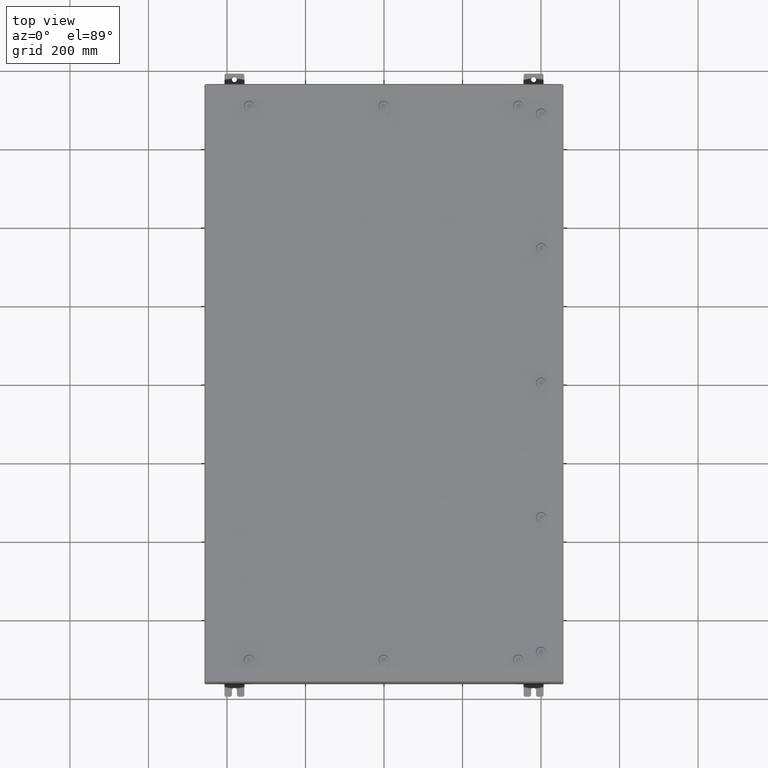
[diagram: clean part render]
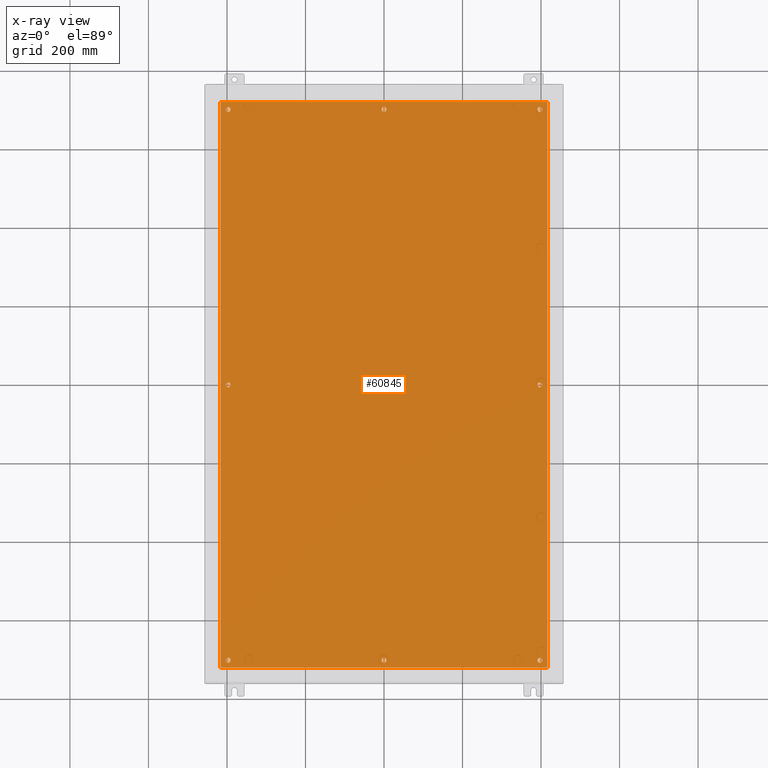
[diagram: x-ray — body ghosted, one internal face saturated and labeled with its STEP entity id]
A machine part, top view, then the same camera in x-ray: the body is ghosted and one INTERNAL B-rep face — a face not visible from any outside direction — is saturated and labeled: STEP entity #60845.
In plain terms, the highlighted planar face has unit normal (0, 0, -1).
Its self-contained STEP definition (entity closure, byte-faithful):
#55 = ORIENTED_EDGE ( 'NONE', *, *, #8311, .T. ) ;
#621 = AXIS2_PLACEMENT_3D ( 'NONE', #48379, #27623, #56790 ) ;
#662 = EDGE_CURVE ( 'NONE', #45774, #49814, #28834, .T. ) ;
#1459 = EDGE_CURVE ( 'NONE', #49814, #45774, #5251, .T. ) ;
#1647 = CARTESIAN_POINT ( 'NONE',  ( -15.37500000000000500, -8.298848852119578500E-016, -0.1039999999999999800 ) ) ;
#1670 = CARTESIAN_POINT ( 'NONE',  ( 16.38299999999999900, 28.38299999999998800, -0.1040000000000009100 ) ) ;
#2325 = EDGE_CURVE ( 'NONE', #19548, #65533, #22899, .T. ) ;
#2331 = DIRECTION ( 'NONE',  ( -0.0000000000000000000, -0.0000000000000000000, 1.000000000000000000 ) ) ;
#3059 = DIRECTION ( 'NONE',  ( 1.000000000000000000, -0.0000000000000000000, -0.0000000000000000000 ) ) ;
#3248 = EDGE_LOOP ( 'NONE', ( #14933, #36648 ) ) ;
#3445 = EDGE_LOOP ( 'NONE', ( #41530, #25953 ) ) ;
#4268 = CIRCLE ( 'NONE', #22960, 0.2500000000000008900 ) ;
#4839 = CARTESIAN_POINT ( 'NONE',  ( 0.0000000000000000000, 27.62500000000000000, -0.1039999999999999800 ) ) ;
#5251 = CIRCLE ( 'NONE', #19748, 0.2500000000000011700 ) ;
#5957 = AXIS2_PLACEMENT_3D ( 'NONE', #39358, #7279, #44708 ) ;
#6398 = CARTESIAN_POINT ( 'NONE',  ( 16.50000000000000000, 28.38299999999999600, -0.1040000000000009400 ) ) ;
#7279 = DIRECTION ( 'NONE',  ( -0.0000000000000000000, -0.0000000000000000000, 1.000000000000000000 ) ) ;
#7338 = EDGE_CURVE ( 'NONE', #54043, #12693, #20841, .T. ) ;
#7762 = CIRCLE ( 'NONE', #56316, 0.2500000000000008900 ) ;
#7922 = VERTEX_POINT ( 'NONE', #68845 ) ;
#8017 = DIRECTION ( 'NONE',  ( -1.000000000000000000, 0.0000000000000000000, 0.0000000000000000000 ) ) ;
#8251 = CARTESIAN_POINT ( 'NONE',  ( -15.62500000000001100, 27.62500000000000000, -0.1039999999999999800 ) ) ;
#8311 = EDGE_CURVE ( 'NONE', #7922, #14552, #19157, .T. ) ;
#8398 = EDGE_CURVE ( 'NONE', #51762, #43004, #44172, .T. ) ;
#8799 = EDGE_LOOP ( 'NONE', ( #31256, #59850 ) ) ;
#9094 = EDGE_LOOP ( 'NONE', ( #49735, #61464, #32280, #57158 ) ) ;
#9729 = DIRECTION ( 'NONE',  ( -0.0000000000000000000, -0.0000000000000000000, 1.000000000000000000 ) ) ;
#10201 = FACE_BOUND ( 'NONE', #57133, .T. ) ;
#10237 = DIRECTION ( 'NONE',  ( -1.000000000000000000, 0.0000000000000000000, 0.0000000000000000000 ) ) ;
#10592 = CARTESIAN_POINT ( 'NONE',  ( -15.87500000000000700, -7.992687152332741600E-016, -0.1039999999999999800 ) ) ;
#10822 = CARTESIAN_POINT ( 'NONE',  ( 15.62500000000000900, -27.62500000000000000, -0.1039999999999999800 ) ) ;
#11716 = DIRECTION ( 'NONE',  ( -0.0000000000000000000, -0.0000000000000000000, 1.000000000000000000 ) ) ;
#12627 = CARTESIAN_POINT ( 'NONE',  ( -15.37500000000000900, 27.62500000000000000, -0.1039999999999999800 ) ) ;
#12693 = VERTEX_POINT ( 'NONE', #1670 ) ;
#12861 = CARTESIAN_POINT ( 'NONE',  ( -15.37500000000000900, -27.62500000000000000, -0.1039999999999999800 ) ) ;
#13051 = EDGE_CURVE ( 'NONE', #16621, #41431, #27387, .T. ) ;
#13097 = CARTESIAN_POINT ( 'NONE',  ( -15.62500000000000500, -8.298848852119578500E-016, -0.1039999999999999800 ) ) ;
#13124 = CARTESIAN_POINT ( 'NONE',  ( -15.87500000000001100, 27.62500000000000000, -0.1039999999999999800 ) ) ;
#13408 = VERTEX_POINT ( 'NONE', #26691 ) ;
#13662 = DIRECTION ( 'NONE',  ( -1.000000000000000000, 0.0000000000000000000, 0.0000000000000000000 ) ) ;
#13898 = AXIS2_PLACEMENT_3D ( 'NONE', #10822, #48251, #16258 ) ;
#14116 = VERTEX_POINT ( 'NONE', #13124 ) ;
#14552 = VERTEX_POINT ( 'NONE', #63757 ) ;
#14933 = ORIENTED_EDGE ( 'NONE', *, *, #2325, .T. ) ;
#15164 = CIRCLE ( 'NONE', #69335, 0.2500000000000008900 ) ;
#15426 = CARTESIAN_POINT ( 'NONE',  ( -0.2500000000000011700, -27.62500000000000000, -0.1039999999999999800 ) ) ;
#15698 = DIRECTION ( 'NONE',  ( -0.0000000000000000000, -0.0000000000000000000, 1.000000000000000000 ) ) ;
#16145 = CARTESIAN_POINT ( 'NONE',  ( 15.62500000000000900, 27.62500000000000000, -0.1039999999999999800 ) ) ;
#16258 = DIRECTION ( 'NONE',  ( -1.000000000000000000, 0.0000000000000000000, 0.0000000000000000000 ) ) ;
#16621 = VERTEX_POINT ( 'NONE', #65924 ) ;
#17282 = CIRCLE ( 'NONE', #54260, 0.2499999999999987000 ) ;
#17938 = EDGE_CURVE ( 'NONE', #41431, #16621, #7762, .T. ) ;
#18027 = EDGE_CURVE ( 'NONE', #21912, #18144, #48736, .T. ) ;
#18144 = VERTEX_POINT ( 'NONE', #22248 ) ;
#19096 = CARTESIAN_POINT ( 'NONE',  ( -15.62500000000000900, -27.62500000000000000, -0.1039999999999999800 ) ) ;
#19157 = CIRCLE ( 'NONE', #621, 0.2499999999999998600 ) ;
#19181 = CARTESIAN_POINT ( 'NONE',  ( -16.38299999999999900, 28.38299999999998800, -0.1040000000000009100 ) ) ;
#19548 = VERTEX_POINT ( 'NONE', #12861 ) ;
#19748 = AXIS2_PLACEMENT_3D ( 'NONE', #53363, #40325, #8017 ) ;
#20050 = DIRECTION ( 'NONE',  ( 0.0000000000000000000, 1.000000000000000000, 0.0000000000000000000 ) ) ;
#20643 = AXIS2_PLACEMENT_3D ( 'NONE', #19096, #2331, #49202 ) ;
#20841 = LINE ( 'NONE', #29858, #49262 ) ;
#21219 = EDGE_CURVE ( 'NONE', #43004, #51762, #15164, .T. ) ;
#21546 = DIRECTION ( 'NONE',  ( -1.000000000000000000, 0.0000000000000000000, 0.0000000000000000000 ) ) ;
#21912 = VERTEX_POINT ( 'NONE', #43996 ) ;
#22248 = CARTESIAN_POINT ( 'NONE',  ( 15.37500000000000900, 27.62500000000000000, -0.1039999999999999800 ) ) ;
#22899 = CIRCLE ( 'NONE', #20643, 0.2499999999999987000 ) ;
#22960 = AXIS2_PLACEMENT_3D ( 'NONE', #8251, #45676, #13662 ) ;
#23512 = EDGE_CURVE ( 'NONE', #65533, #19548, #17282, .T. ) ;
#24545 = FACE_BOUND ( 'NONE', #44062, .T. ) ;
#24729 = VECTOR ( 'NONE', #38486, 39.37007874015748100 ) ;
#25953 = ORIENTED_EDGE ( 'NONE', *, *, #662, .T. ) ;
#25970 = EDGE_CURVE ( 'NONE', #13408, #54043, #68003, .T. ) ;
#26559 = VERTEX_POINT ( 'NONE', #12627 ) ;
#26633 = DIRECTION ( 'NONE',  ( 0.0000000000000000000, 0.0000000000000000000, -1.000000000000000000 ) ) ;
#26691 = CARTESIAN_POINT ( 'NONE',  ( -16.38299999999999900, -28.38300000000000600, -0.1040000000000009400 ) ) ;
#27053 = AXIS2_PLACEMENT_3D ( 'NONE', #60603, #60831, #29807 ) ;
#27119 = VECTOR ( 'NONE', #3059, 39.37007874015748100 ) ;
#27387 = CIRCLE ( 'NONE', #27053, 0.2500000000000008900 ) ;
#27623 = DIRECTION ( 'NONE',  ( -0.0000000000000000000, -0.0000000000000000000, 1.000000000000000000 ) ) ;
#27718 = DIRECTION ( 'NONE',  ( -0.0000000000000000000, -0.0000000000000000000, 1.000000000000000000 ) ) ;
#28834 = CIRCLE ( 'NONE', #29558, 0.2500000000000011700 ) ;
#29558 = AXIS2_PLACEMENT_3D ( 'NONE', #67916, #31405, #43380 ) ;
#29807 = DIRECTION ( 'NONE',  ( -1.000000000000000000, 0.0000000000000000000, 0.0000000000000000000 ) ) ;
#29858 = CARTESIAN_POINT ( 'NONE',  ( 16.38299999999999900, -28.38300000000000600, -0.1040000000000009100 ) ) ;
#30551 = DIRECTION ( 'NONE',  ( -0.0000000000000000000, -0.0000000000000000000, 1.000000000000000000 ) ) ;
#30961 = ORIENTED_EDGE ( 'NONE', *, *, #63386, .T. ) ;
#31256 = ORIENTED_EDGE ( 'NONE', *, *, #61543, .T. ) ;
#31405 = DIRECTION ( 'NONE',  ( -0.0000000000000000000, -0.0000000000000000000, 1.000000000000000000 ) ) ;
#32280 = ORIENTED_EDGE ( 'NONE', *, *, #58006, .F. ) ;
#32654 = ORIENTED_EDGE ( 'NONE', *, *, #62827, .T. ) ;
#34956 = ORIENTED_EDGE ( 'NONE', *, *, #8398, .T. ) ;
#35147 = ORIENTED_EDGE ( 'NONE', *, *, #13051, .T. ) ;
#35423 = CIRCLE ( 'NONE', #13898, 0.2499999999999987000 ) ;
#35920 = CARTESIAN_POINT ( 'NONE',  ( 0.2500000000000011700, -27.62500000000000000, -0.1039999999999999800 ) ) ;
#36010 = CIRCLE ( 'NONE', #5957, 0.2499999999999987000 ) ;
#36284 = AXIS2_PLACEMENT_3D ( 'NONE', #58615, #26633, #63969 ) ;
#36496 = VERTEX_POINT ( 'NONE', #41075 ) ;
#36648 = ORIENTED_EDGE ( 'NONE', *, *, #23512, .T. ) ;
#37120 = PLANE ( 'NONE',  #36284 ) ;
#37787 = VERTEX_POINT ( 'NONE', #66631 ) ;
#38123 = DIRECTION ( 'NONE',  ( -1.000000000000000000, 0.0000000000000000000, 0.0000000000000000000 ) ) ;
#38401 = EDGE_LOOP ( 'NONE', ( #34956, #47760 ) ) ;
#38486 = DIRECTION ( 'NONE',  ( -1.000000000000000000, -0.0000000000000000000, -0.0000000000000000000 ) ) ;
#38712 = FACE_BOUND ( 'NONE', #3248, .T. ) ;
#39358 = CARTESIAN_POINT ( 'NONE',  ( 15.62500000000000900, 27.62500000000000000, -0.1039999999999999800 ) ) ;
#40325 = DIRECTION ( 'NONE',  ( -0.0000000000000000000, -0.0000000000000000000, 1.000000000000000000 ) ) ;
#40400 = FACE_BOUND ( 'NONE', #46898, .T. ) ;
#40446 = EDGE_CURVE ( 'NONE', #18144, #21912, #36010, .T. ) ;
#40771 = ORIENTED_EDGE ( 'NONE', *, *, #40446, .T. ) ;
#41075 = CARTESIAN_POINT ( 'NONE',  ( -16.38299999999999900, 28.38299999999998800, -0.1040000000000009100 ) ) ;
#41159 = LINE ( 'NONE', #19181, #55419 ) ;
#41431 = VERTEX_POINT ( 'NONE', #42163 ) ;
#41530 = ORIENTED_EDGE ( 'NONE', *, *, #1459, .T. ) ;
#41783 = CARTESIAN_POINT ( 'NONE',  ( -15.62500000000000500, -8.298848852119578500E-016, -0.1039999999999999800 ) ) ;
#42012 = FACE_BOUND ( 'NONE', #67109, .T. ) ;
#42163 = CARTESIAN_POINT ( 'NONE',  ( 15.37500000000000500, 3.027752532102206500E-015, -0.1039999999999999800 ) ) ;
#42284 = DIRECTION ( 'NONE',  ( -0.0000000000000000000, -0.0000000000000000000, 1.000000000000000000 ) ) ;
#43004 = VERTEX_POINT ( 'NONE', #10592 ) ;
#43380 = DIRECTION ( 'NONE',  ( -1.000000000000000000, 0.0000000000000000000, 0.0000000000000000000 ) ) ;
#43740 = CARTESIAN_POINT ( 'NONE',  ( -15.62500000000000900, -27.62500000000000000, -0.1039999999999999800 ) ) ;
#43996 = CARTESIAN_POINT ( 'NONE',  ( 15.87500000000000700, 27.62500000000000000, -0.1039999999999999800 ) ) ;
#44062 = EDGE_LOOP ( 'NONE', ( #48369, #32654 ) ) ;
#44172 = CIRCLE ( 'NONE', #55133, 0.2500000000000008900 ) ;
#44708 = DIRECTION ( 'NONE',  ( -1.000000000000000000, 0.0000000000000000000, 0.0000000000000000000 ) ) ;
#45676 = DIRECTION ( 'NONE',  ( -0.0000000000000000000, -0.0000000000000000000, 1.000000000000000000 ) ) ;
#45774 = VERTEX_POINT ( 'NONE', #15426 ) ;
#46898 = EDGE_LOOP ( 'NONE', ( #55, #30961 ) ) ;
#47159 = DIRECTION ( 'NONE',  ( -1.000000000000000000, 0.0000000000000000000, 0.0000000000000000000 ) ) ;
#47689 = CARTESIAN_POINT ( 'NONE',  ( 15.62500000000000500, 2.997136362123522700E-015, -0.1039999999999999800 ) ) ;
#47760 = ORIENTED_EDGE ( 'NONE', *, *, #21219, .T. ) ;
#48251 = DIRECTION ( 'NONE',  ( -0.0000000000000000000, -0.0000000000000000000, 1.000000000000000000 ) ) ;
#48369 = ORIENTED_EDGE ( 'NONE', *, *, #60110, .T. ) ;
#48379 = CARTESIAN_POINT ( 'NONE',  ( 0.0000000000000000000, 27.62500000000000000, -0.1039999999999999800 ) ) ;
#48460 = AXIS2_PLACEMENT_3D ( 'NONE', #4839, #42284, #10237 ) ;
#48736 = CIRCLE ( 'NONE', #67032, 0.2499999999999987000 ) ;
#49120 = DIRECTION ( 'NONE',  ( -1.000000000000000000, 0.0000000000000000000, 0.0000000000000000000 ) ) ;
#49202 = DIRECTION ( 'NONE',  ( -1.000000000000000000, 0.0000000000000000000, 0.0000000000000000000 ) ) ;
#49262 = VECTOR ( 'NONE', #20050, 39.37007874015748100 ) ;
#49672 = EDGE_CURVE ( 'NONE', #36496, #13408, #41159, .T. ) ;
#49735 = ORIENTED_EDGE ( 'NONE', *, *, #25970, .F. ) ;
#49785 = EDGE_CURVE ( 'NONE', #14116, #26559, #52032, .T. ) ;
#49814 = VERTEX_POINT ( 'NONE', #35920 ) ;
#50493 = DIRECTION ( 'NONE',  ( -0.0000000000000000000, -0.0000000000000000000, 1.000000000000000000 ) ) ;
#51244 = FACE_OUTER_BOUND ( 'NONE', #9094, .T. ) ;
#51762 = VERTEX_POINT ( 'NONE', #1647 ) ;
#52032 = CIRCLE ( 'NONE', #53818, 0.2500000000000008900 ) ;
#52924 = FACE_BOUND ( 'NONE', #38401, .T. ) ;
#53096 = DIRECTION ( 'NONE',  ( -1.000000000000000000, 0.0000000000000000000, 0.0000000000000000000 ) ) ;
#53363 = CARTESIAN_POINT ( 'NONE',  ( 0.0000000000000000000, -27.62500000000000000, -0.1039999999999999800 ) ) ;
#53565 = DIRECTION ( 'NONE',  ( -0.0000000000000000000, -0.0000000000000000000, 1.000000000000000000 ) ) ;
#53642 = ORIENTED_EDGE ( 'NONE', *, *, #17938, .T. ) ;
#53818 = AXIS2_PLACEMENT_3D ( 'NONE', #62570, #30551, #67891 ) ;
#54043 = VERTEX_POINT ( 'NONE', #63068 ) ;
#54260 = AXIS2_PLACEMENT_3D ( 'NONE', #43740, #11716, #49120 ) ;
#55013 = CIRCLE ( 'NONE', #48460, 0.2499999999999998600 ) ;
#55133 = AXIS2_PLACEMENT_3D ( 'NONE', #13097, #50493, #38123 ) ;
#55419 = VECTOR ( 'NONE', #62126, 39.37007874015748100 ) ;
#56316 = AXIS2_PLACEMENT_3D ( 'NONE', #47689, #15698, #53096 ) ;
#56421 = CARTESIAN_POINT ( 'NONE',  ( -16.50000000000000000, -28.38300000000000600, -0.1040000000000009400 ) ) ;
#56790 = DIRECTION ( 'NONE',  ( -1.000000000000000000, 0.0000000000000000000, 0.0000000000000000000 ) ) ;
#57133 = EDGE_LOOP ( 'NONE', ( #69130, #40771 ) ) ;
#57158 = ORIENTED_EDGE ( 'NONE', *, *, #7338, .F. ) ;
#58006 = EDGE_CURVE ( 'NONE', #12693, #36496, #67296, .T. ) ;
#58567 = VERTEX_POINT ( 'NONE', #64771 ) ;
#58615 = CARTESIAN_POINT ( 'NONE',  ( 0.0000000000000000000, 0.0000000000000000000, -0.1039999999999999800 ) ) ;
#59715 = CARTESIAN_POINT ( 'NONE',  ( 15.62500000000000900, -27.62500000000000000, -0.1039999999999999800 ) ) ;
#59850 = ORIENTED_EDGE ( 'NONE', *, *, #49785, .T. ) ;
#60110 = EDGE_CURVE ( 'NONE', #58567, #37787, #35423, .T. ) ;
#60603 = CARTESIAN_POINT ( 'NONE',  ( 15.62500000000000500, 2.997136362123522700E-015, -0.1039999999999999800 ) ) ;
#60831 = DIRECTION ( 'NONE',  ( -0.0000000000000000000, -0.0000000000000000000, 1.000000000000000000 ) ) ;
#60845 = ADVANCED_FACE ( 'NONE', ( #67110, #40400, #42012, #52924, #38712, #24545, #10201, #65436, #51244 ), #37120, .T. ) ;
#60867 = CIRCLE ( 'NONE', #61934, 0.2499999999999987000 ) ;
#61464 = ORIENTED_EDGE ( 'NONE', *, *, #49672, .F. ) ;
#61543 = EDGE_CURVE ( 'NONE', #26559, #14116, #4268, .T. ) ;
#61934 = AXIS2_PLACEMENT_3D ( 'NONE', #59715, #27718, #65066 ) ;
#62126 = DIRECTION ( 'NONE',  ( 0.0000000000000000000, -1.000000000000000000, 0.0000000000000000000 ) ) ;
#62570 = CARTESIAN_POINT ( 'NONE',  ( -15.62500000000001100, 27.62500000000000000, -0.1039999999999999800 ) ) ;
#62827 = EDGE_CURVE ( 'NONE', #37787, #58567, #60867, .T. ) ;
#63068 = CARTESIAN_POINT ( 'NONE',  ( 16.38299999999999900, -28.38300000000000600, -0.1040000000000009100 ) ) ;
#63386 = EDGE_CURVE ( 'NONE', #14552, #7922, #55013, .T. ) ;
#63757 = CARTESIAN_POINT ( 'NONE',  ( -0.2499999999999998600, 27.62500000000000000, -0.1039999999999999800 ) ) ;
#63969 = DIRECTION ( 'NONE',  ( -1.000000000000000000, 0.0000000000000000000, -0.0000000000000000000 ) ) ;
#64771 = CARTESIAN_POINT ( 'NONE',  ( 15.87500000000000700, -27.62500000000000000, -0.1039999999999999800 ) ) ;
#65066 = DIRECTION ( 'NONE',  ( -1.000000000000000000, 0.0000000000000000000, 0.0000000000000000000 ) ) ;
#65436 = FACE_BOUND ( 'NONE', #8799, .T. ) ;
#65533 = VERTEX_POINT ( 'NONE', #66017 ) ;
#65924 = CARTESIAN_POINT ( 'NONE',  ( 15.87500000000000700, 2.997136362123522700E-015, -0.1039999999999999800 ) ) ;
#66017 = CARTESIAN_POINT ( 'NONE',  ( -15.87500000000000700, -27.62500000000000000, -0.1039999999999999800 ) ) ;
#66631 = CARTESIAN_POINT ( 'NONE',  ( 15.37500000000000900, -27.62500000000000000, -0.1039999999999999800 ) ) ;
#67032 = AXIS2_PLACEMENT_3D ( 'NONE', #16145, #53565, #21546 ) ;
#67109 = EDGE_LOOP ( 'NONE', ( #35147, #53642 ) ) ;
#67110 = FACE_BOUND ( 'NONE', #3445, .T. ) ;
#67296 = LINE ( 'NONE', #6398, #24729 ) ;
#67891 = DIRECTION ( 'NONE',  ( -1.000000000000000000, 0.0000000000000000000, 0.0000000000000000000 ) ) ;
#67916 = CARTESIAN_POINT ( 'NONE',  ( 0.0000000000000000000, -27.62500000000000000, -0.1039999999999999800 ) ) ;
#68003 = LINE ( 'NONE', #56421, #27119 ) ;
#68845 = CARTESIAN_POINT ( 'NONE',  ( 0.2499999999999998600, 27.62500000000000000, -0.1039999999999999800 ) ) ;
#69130 = ORIENTED_EDGE ( 'NONE', *, *, #18027, .T. ) ;
#69335 = AXIS2_PLACEMENT_3D ( 'NONE', #41783, #9729, #47159 ) ;